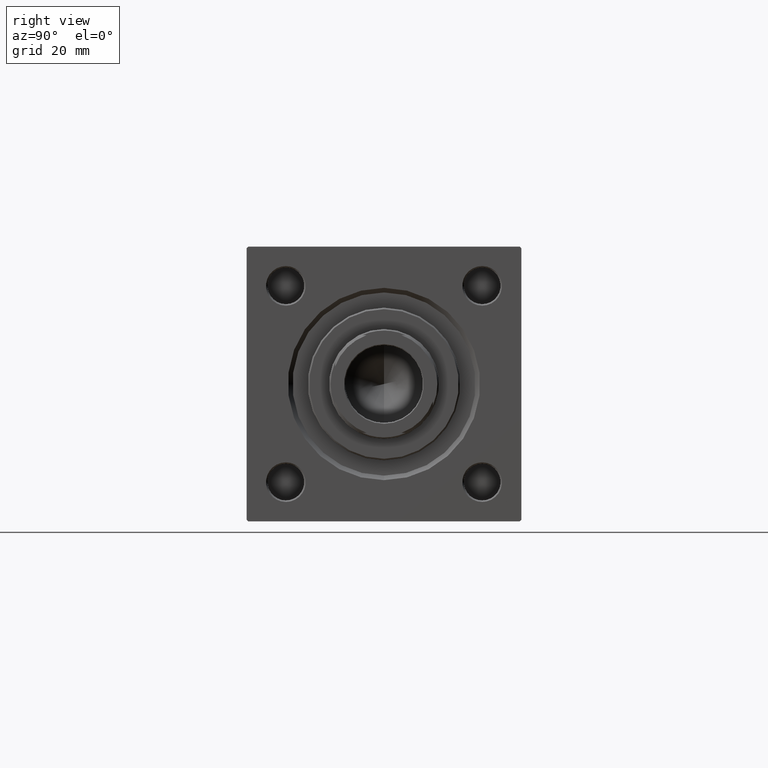
[diagram: clean part render]
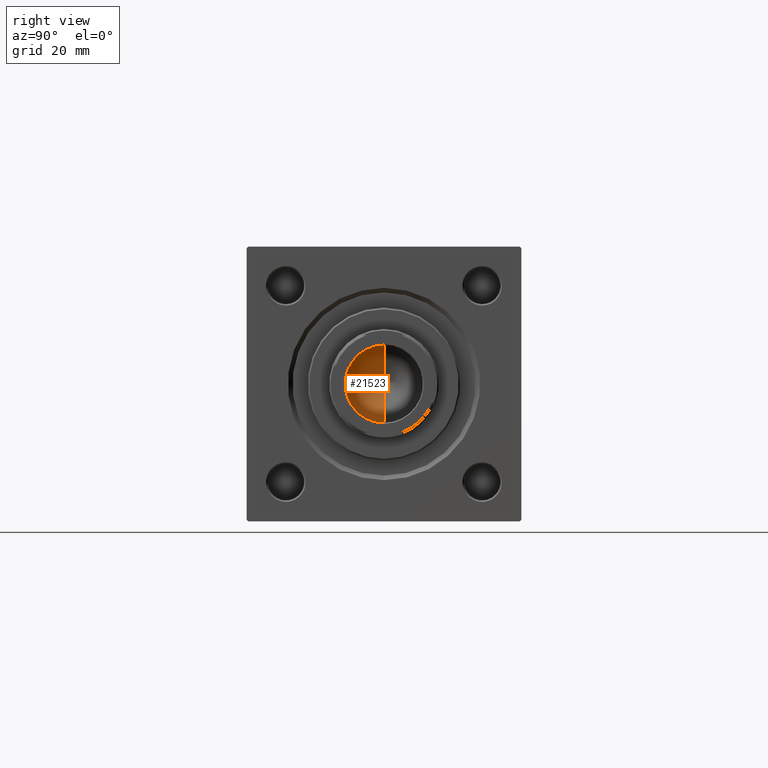
[diagram: same view with one face highlighted and labeled with its STEP entity id]
A machine part, right view. The second image highlights one B-rep face of the part: STEP entity #21523.
In plain terms, the highlighted conical surface has half-angle 59 deg.
Its self-contained STEP definition (entity closure, byte-faithful):
#61 = VERTEX_POINT ( 'NONE', #13074 ) ;
#769 = DIRECTION ( 'NONE',  ( -0.8571673007021117785, 1.049727191138617956E-16, 0.5150380749100550437 ) ) ;
#3631 = DIRECTION ( 'NONE',  ( 1.000000000000000000, 0.000000000000000000, 0.000000000000000000 ) ) ;
#6496 = CONICAL_SURFACE ( 'NONE', #15426, 12.74999999999999112, 1.029744258676653423 ) ;
#7630 = ORIENTED_EDGE ( 'NONE', *, *, #42219, .T. ) ;
#7844 = CARTESIAN_POINT ( 'NONE',  ( 0.000000000000000000, 0.000000000000000000, 105.0000000000000284 ) ) ;
#7994 = DIRECTION ( 'NONE',  ( 0.8571673007021117785, 0.000000000000000000, 0.5150380749100550437 ) ) ;
#11068 = VERTEX_POINT ( 'NONE', #21833 ) ;
#11134 = ORIENTED_EDGE ( 'NONE', *, *, #32615, .T. ) ;
#11742 = CARTESIAN_POINT ( 'NONE',  ( 0.000000000000000000, 0.000000000000000000, 105.0000000000000284 ) ) ;
#11798 = LINE ( 'NONE', #37965, #25054 ) ;
#12138 = VECTOR ( 'NONE', #769, 1000.000000000000000 ) ;
#12206 = CARTESIAN_POINT ( 'NONE',  ( -12.74999999999999112, 1.561424668912874125E-15, 105.0000000000000284 ) ) ;
#13074 = CARTESIAN_POINT ( 'NONE',  ( 12.74999999999999112, 0.000000000000000000, 105.0000000000000284 ) ) ;
#14956 = CARTESIAN_POINT ( 'NONE',  ( -12.74999999999999112, 1.561424668912874125E-15, 105.0000000000000284 ) ) ;
#15426 = AXIS2_PLACEMENT_3D ( 'NONE', #7844, #22841, #38325 ) ;
#17487 = EDGE_LOOP ( 'NONE', ( #22154, #7630, #11134 ) ) ;
#21523 = ADVANCED_FACE ( 'NONE', ( #45691 ), #6496, .F. ) ;
#21833 = CARTESIAN_POINT ( 'NONE',  ( -1.323906893019387300E-14, 0.000000000000000000, 97.33902710739862130 ) ) ;
#22154 = ORIENTED_EDGE ( 'NONE', *, *, #46981, .F. ) ;
#22841 = DIRECTION ( 'NONE',  ( -0.000000000000000000, -0.000000000000000000, 1.000000000000000000 ) ) ;
#25054 = VECTOR ( 'NONE', #7994, 1000.000000000000000 ) ;
#29217 = VERTEX_POINT ( 'NONE', #14956 ) ;
#31854 = AXIS2_PLACEMENT_3D ( 'NONE', #11742, #49842, #3631 ) ;
#32615 = EDGE_CURVE ( 'NONE', #61, #29217, #45659, .T. ) ;
#35071 = LINE ( 'NONE', #12206, #12138 ) ;
#37965 = CARTESIAN_POINT ( 'NONE',  ( 12.74999999999999112, 0.000000000000000000, 105.0000000000000284 ) ) ;
#38325 = DIRECTION ( 'NONE',  ( 1.000000000000000000, 0.000000000000000000, 0.000000000000000000 ) ) ;
#42219 = EDGE_CURVE ( 'NONE', #11068, #61, #11798, .T. ) ;
#45659 = CIRCLE ( 'NONE', #31854, 12.74999999999999112 ) ;
#45691 = FACE_OUTER_BOUND ( 'NONE', #17487, .T. ) ;
#46981 = EDGE_CURVE ( 'NONE', #11068, #29217, #35071, .T. ) ;
#49842 = DIRECTION ( 'NONE',  ( -0.000000000000000000, -0.000000000000000000, 1.000000000000000000 ) ) ;